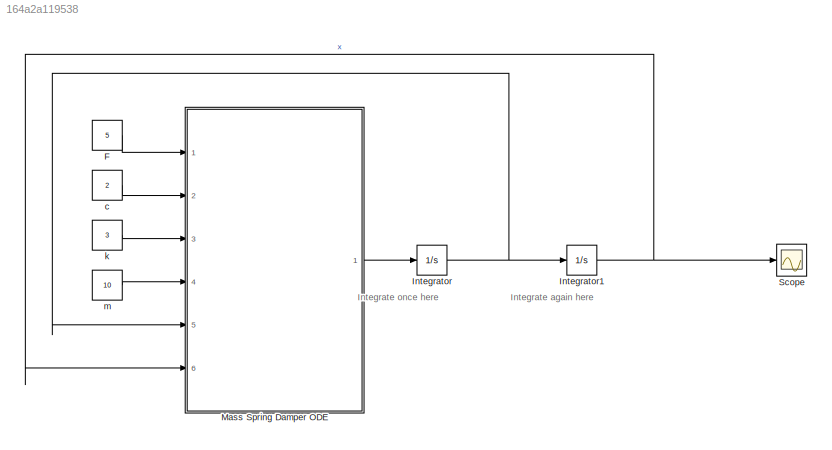
MODEL slx_164a2a119538
KIND model
CONFIG AbsTol = auto
CONFIG EnableMultiTasking = off
CONFIG FixedStep = auto
CONFIG MaxStep = auto
CONFIG MinStep = auto
CONFIG RelTol = 1e-6
CONFIG SampleTimeConstraint = Unconstrained
CONFIG SolverName = VariableStepAuto
CONFIG StartTime = 0.0
CONFIG StopTime = 50
BLOCK [Constant] F
  Value = 5
BLOCK [Integrator] Integrator
  InitialCondition = -3
  Ports = [1, 1]
BLOCK [Integrator] Integrator1
  InitialCondition = 2
  Ports = [1, 1]
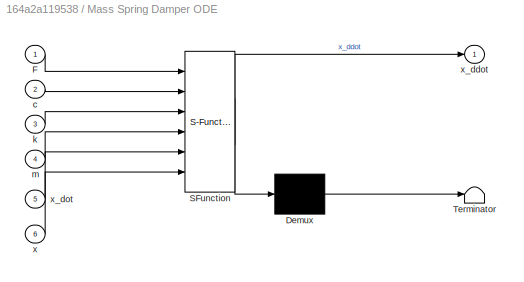
BLOCK [SubSystem] Mass Spring Damper ODE
  ErrorFcn = Stateflow.Translate.translate
  PermitHierarchicalResolution = ExplicitOnly
  Ports = [6, 1]
  RequestExecContextInheritance = off
  SFBlockType = MATLAB Function
  TreatAsAtomicUnit = on
BLOCK [Demux] Mass Spring Damper ODE/ Demux 
  Outputs = 1
  Ports = [1, 1]
BLOCK [S-Function] Mass Spring Damper ODE/ SFunction 
  EnableBusSupport = on
  FunctionName = sf_sfun
  PortCounts = [6 2]
  Ports = [6, 2]
  SFcnIsStateOwnerBlock = off
  SFunctionDeploymentMode = off
  Tag = Stateflow S-Function 2
BLOCK [Terminator] Mass Spring Damper ODE/ Terminator 
BLOCK [Inport] Mass Spring Damper ODE/F
BLOCK [Inport] Mass Spring Damper ODE/c
  Port = 2
BLOCK [Inport] Mass Spring Damper ODE/k
  Port = 3
BLOCK [Inport] Mass Spring Damper ODE/m
  Port = 4
BLOCK [Inport] Mass Spring Damper ODE/x
  Port = 6
BLOCK [Outport] Mass Spring Damper ODE/x_ddot
BLOCK [Inport] Mass Spring Damper ODE/x_dot
  Port = 5
BLOCK [Scope] Scope
  Floating = off
  NumInputPorts = 1
  Ports = [1]
  ScopeSpecificationString = Simulink.scopes.TimeScopeBlockCfg('CurrentConfiguration', extmgr.ConfigurationSet(extmgr.Configuration('Core','General UI',true),extmgr.Configuration('Core','Source UI',true),extmgr.Configuration('Sources','WiredSimulink',true),extmgr.Configuration('Visuals','Time Domain',true,'SerializedDisplays',{struct('MinYLimReal','-3.27292','MaxYLimReal','4.77701','YLabelReal','','MinYLimMag','0.00000','MaxY...<+1321ch>
BLOCK [Constant] c
  Value = 2
BLOCK [Constant] k
  Value = 3
BLOCK [Constant] m
  Value = 10
ANNOTATION (root): Integrate again here
ANNOTATION (root): Integrate once here
LINE F:1 -> Mass Spring Damper ODE:1
NET Integrator1:1 -> Mass Spring Damper ODE:6, Scope:1
NET Integrator:1 -> Integrator1:1, Mass Spring Damper ODE:5
LINE Mass Spring Damper ODE:1 -> Integrator:1
LINE c:1 -> Mass Spring Damper ODE:2
LINE k:1 -> Mass Spring Damper ODE:3
LINE m:1 -> Mass Spring Damper ODE:4
note: NET lines group one-source signal fan-out (src -> all destinations, sorted); 1:1 wires keep LINE
CHART Mass Spring Damper ODE states=1 transitions=1
  STATE_LABEL 'eML_blk_kernel()'
  STATE_LABEL 'SCRIPT:\nfunction x_ddot = fcn(F,c,k,m,x_dot,x)\n\n   % Write your expression for x_ddot here in terms of the inputs\n   x_ddot = -(-F+c.*x_dot+k.*x)./m;\nend\n\n'
CHART  states=0 transitions=0
